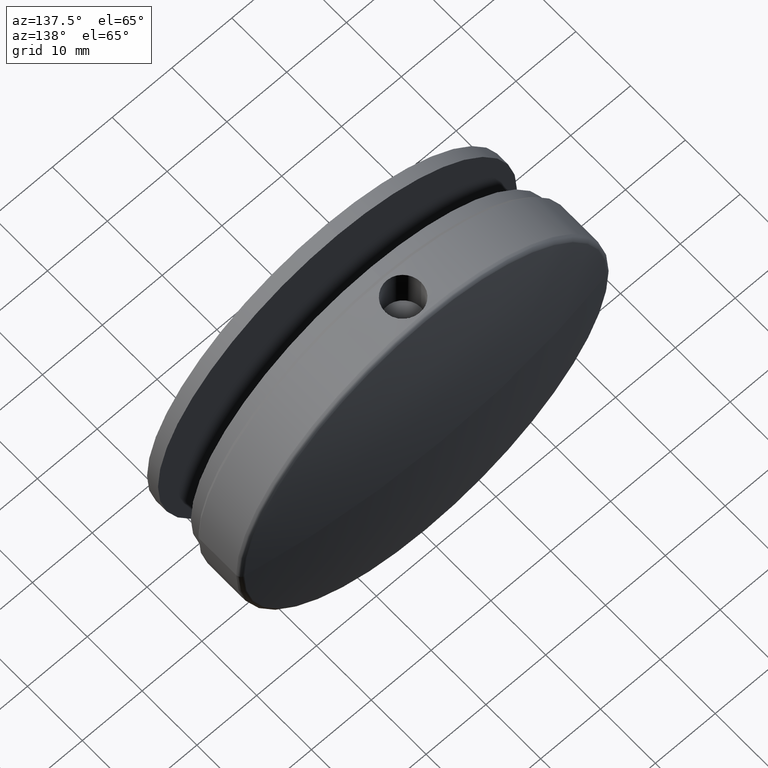
[diagram: clean part render]
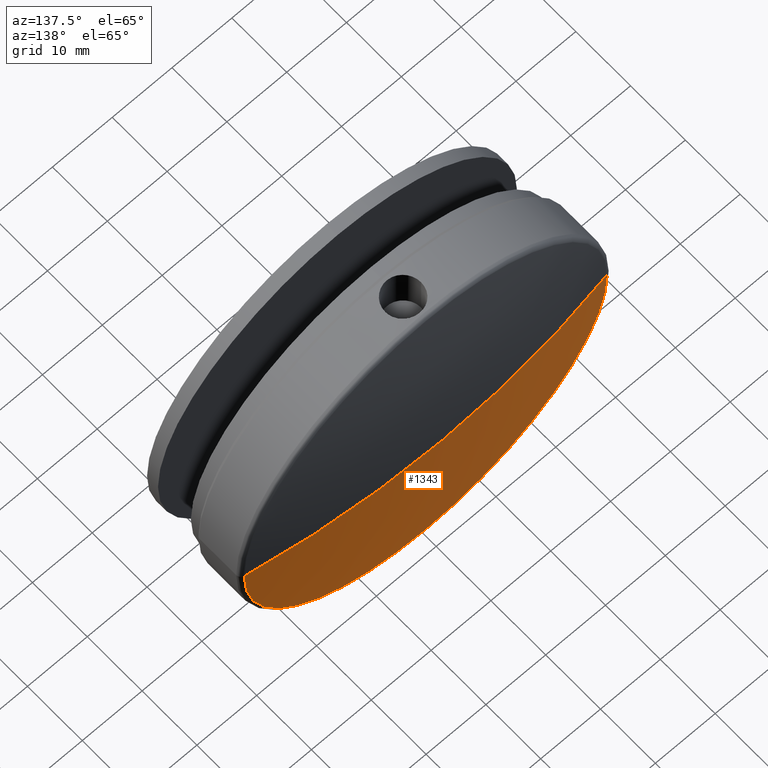
[diagram: same view with one face highlighted and labeled with its STEP entity id]
A machine part, auxiliary view. The second image highlights one B-rep face of the part: STEP entity #1343.
In plain terms, the highlighted spherical surface has radius 161.667 mm.
Its self-contained STEP definition (entity closure, byte-faithful):
#1343 = ADVANCED_FACE ( 'NONE', ( #14111 ), #11855, .T. ) ;
#1605 = DIRECTION ( 'NONE',  ( 1.000000000000000000, 0.000000000000000000, -1.224646799147353207E-16 ) ) ;
#1733 = AXIS2_PLACEMENT_3D ( 'NONE', #7038, #10747, #8262 ) ;
#1763 = CARTESIAN_POINT ( 'NONE',  ( 0.000000000000000000, -150.6666666666658045, 0.000000000000000000 ) ) ;
#3789 = ORIENTED_EDGE ( 'NONE', *, *, #6495, .T. ) ;
#3790 = EDGE_CURVE ( 'NONE', #15342, #14091, #6681, .T. ) ;
#3956 = DIRECTION ( 'NONE',  ( -1.000000000000000000, 0.000000000000000000, 0.000000000000000000 ) ) ;
#5071 = AXIS2_PLACEMENT_3D ( 'NONE', #14251, #8019, #9266 ) ;
#6495 = EDGE_CURVE ( 'NONE', #15342, #7456, #7019, .T. ) ;
#6681 = CIRCLE ( 'NONE', #7538, 161.6666666666658614 ) ;
#6735 = CARTESIAN_POINT ( 'NONE',  ( -1.430718418612099574E-13, 11.00000000000003730, 0.000000000000000000 ) ) ;
#6854 = CARTESIAN_POINT ( 'NONE',  ( -30.35018648984662804, 8.125579022921908035, 3.716825873831572403E-15 ) ) ;
#7019 = CIRCLE ( 'NONE', #7877, 161.6666666666658614 ) ;
#7038 = CARTESIAN_POINT ( 'NONE',  ( 0.000000000000000000, -150.6666666666658045, 0.000000000000000000 ) ) ;
#7456 = VERTEX_POINT ( 'NONE', #13464 ) ;
#7538 = AXIS2_PLACEMENT_3D ( 'NONE', #1763, #10194, #1605 ) ;
#7877 = AXIS2_PLACEMENT_3D ( 'NONE', #13540, #11183, #3956 ) ;
#8019 = DIRECTION ( 'NONE',  ( -9.462128050782584868E-16, 1.000000000000000000, 0.000000000000000000 ) ) ;
#8262 = DIRECTION ( 'NONE',  ( 1.000000000000000000, 1.030103837281078294E-15, 0.000000000000000000 ) ) ;
#9014 = EDGE_LOOP ( 'NONE', ( #13335, #3789, #11710 ) ) ;
#9266 = DIRECTION ( 'NONE',  ( 1.000000000000000000, 9.716678051211115179E-16, 0.000000000000000000 ) ) ;
#10194 = DIRECTION ( 'NONE',  ( 1.224646799147353207E-16, 1.158776483051327763E-31, 1.000000000000000000 ) ) ;
#10747 = DIRECTION ( 'NONE',  ( 0.000000000000000000, -0.000000000000000000, 1.000000000000000000 ) ) ;
#11183 = DIRECTION ( 'NONE',  ( 0.000000000000000000, 0.000000000000000000, -1.000000000000000000 ) ) ;
#11710 = ORIENTED_EDGE ( 'NONE', *, *, #12959, .T. ) ;
#11855 = SPHERICAL_SURFACE ( 'NONE', #1733, 161.6666666666658614 ) ;
#12959 = EDGE_CURVE ( 'NONE', #7456, #14091, #13836, .T. ) ;
#13335 = ORIENTED_EDGE ( 'NONE', *, *, #3790, .F. ) ;
#13464 = CARTESIAN_POINT ( 'NONE',  ( 30.35018648984632961, 8.125579022921963102, 0.000000000000000000 ) ) ;
#13540 = CARTESIAN_POINT ( 'NONE',  ( 0.000000000000000000, -150.6666666666658045, 0.000000000000000000 ) ) ;
#13836 = CIRCLE ( 'NONE', #5071, 30.35018648984666711 ) ;
#14091 = VERTEX_POINT ( 'NONE', #6854 ) ;
#14111 = FACE_OUTER_BOUND ( 'NONE', #9014, .T. ) ;
#14251 = CARTESIAN_POINT ( 'NONE',  ( -1.502512562186208390E-13, 8.125579022921936456, 0.000000000000000000 ) ) ;
#15342 = VERTEX_POINT ( 'NONE', #6735 ) ;